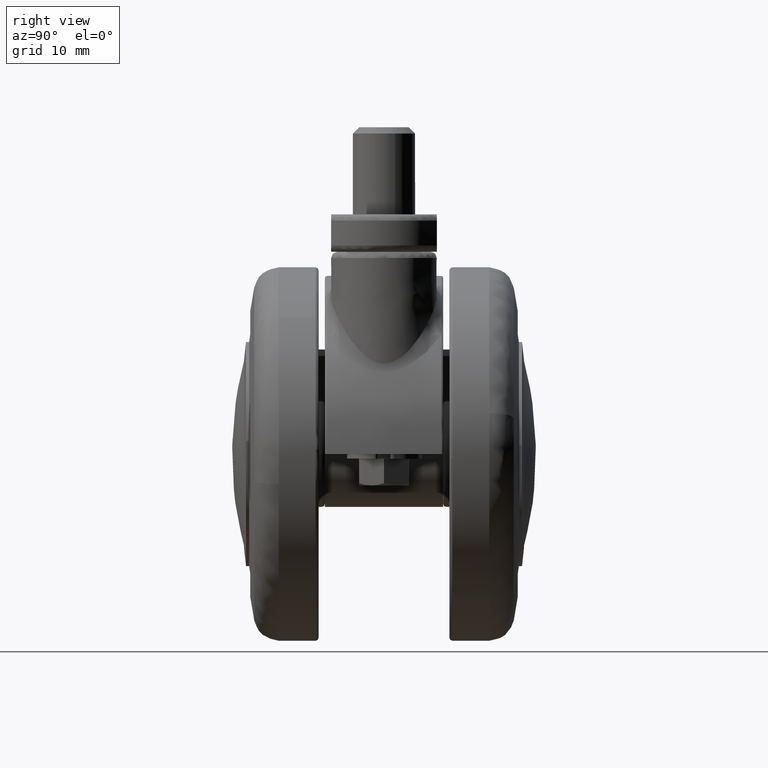
[diagram: clean part render]
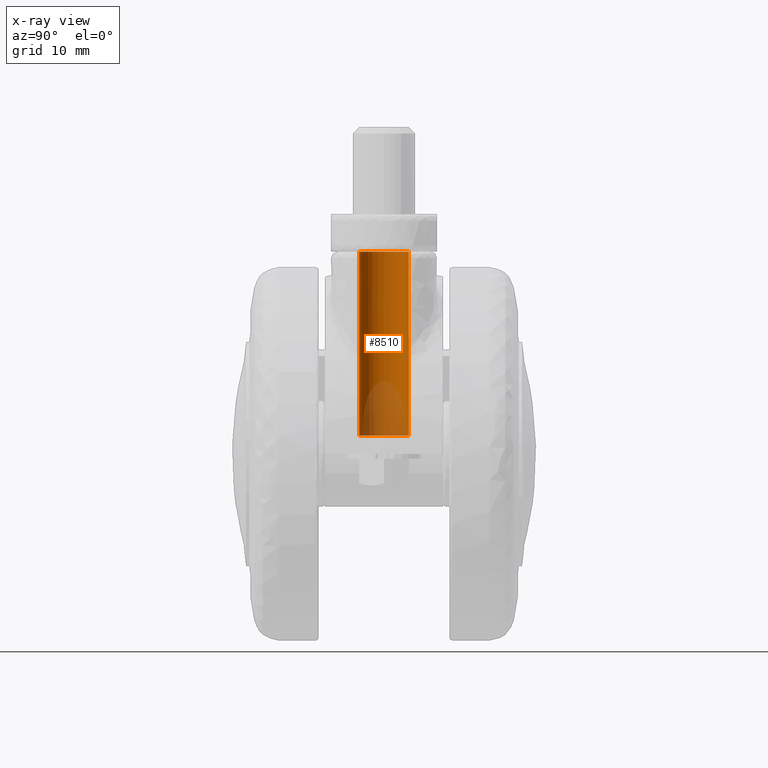
[diagram: x-ray — body ghosted, one internal face saturated and labeled with its STEP entity id]
A machine part, right view, then the same camera in x-ray: the body is ghosted and one INTERNAL B-rep face — a face not visible from any outside direction — is saturated and labeled: STEP entity #8510.
In plain terms, the highlighted face is a freeform B-spline surface patch.
Its self-contained STEP definition (entity closure, byte-faithful):
#8345=CARTESIAN_POINT('',(17.496512008388191,3.969064855293539,32.500000000000000));
#8346=VERTEX_POINT('',#8345);
#8360=CARTESIAN_POINT('',(16.965093857741259,-3.999847692254370,32.500000000000000));
#8361=VERTEX_POINT('',#8360);
#8377=CARTESIAN_POINT('',(16.965093857718490,-3.999847692254171,2.950000000000000));
#8378=VERTEX_POINT('',#8377);
#8379=CARTESIAN_POINT('',(16.965093857741259,-3.999847692254370,32.500000000000000));
#8380=CARTESIAN_POINT('',(16.965093857718490,-3.999847692254171,2.950000000000000));
#8381=QUASI_UNIFORM_CURVE('',1,(#8379,#8380),.UNSPECIFIED.,.F.,.U.);
#8382=EDGE_CURVE('',#8361,#8378,#8381,.T.);
#8401=CARTESIAN_POINT('',(17.496507384745449,3.969065433684801,2.950000000000000));
#8402=VERTEX_POINT('',#8401);
#8416=CARTESIAN_POINT('',(17.496512008388191,3.969064855293539,32.500000000000000));
#8417=CARTESIAN_POINT('',(17.496507384745449,3.969065433684801,2.950000000000000));
#8418=QUASI_UNIFORM_CURVE('',1,(#8416,#8417),.UNSPECIFIED.,.F.,.U.);
#8419=EDGE_CURVE('',#8346,#8402,#8418,.T.);
#8424=CARTESIAN_POINT('',(16.965093858006501,-3.999847692256684,33.238750000000003));
#8425=CARTESIAN_POINT('',(12.965246165749821,-3.964941550263188,33.238750000000003));
#8426=CARTESIAN_POINT('',(13.000152307743321,0.034906141993496,33.238750000000003));
#8427=CARTESIAN_POINT('',(13.035058449736812,4.034753834250179,33.238750000000003));
#8428=CARTESIAN_POINT('',(17.034906141993499,3.999847692256684,33.238750000000003));
#8429=CARTESIAN_POINT('',(17.266600635832695,3.997825725041103,33.238750000000003));
#8430=CARTESIAN_POINT('',(17.496512008319321,3.969064855302155,33.238750000000003));
#8431=CARTESIAN_POINT('',(16.965093858006501,-3.999847692256684,2.192781249999996));
#8432=CARTESIAN_POINT('',(12.965246165749821,-3.964941550263188,2.192781249999997));
#8433=CARTESIAN_POINT('',(13.000152307743321,0.034906141993496,2.192781249999996));
#8434=CARTESIAN_POINT('',(13.035058449736812,4.034753834250179,2.192781249999997));
#8435=CARTESIAN_POINT('',(17.034906141993499,3.999847692256684,2.192781249999996));
#8436=CARTESIAN_POINT('',(17.266600635832695,3.997825725041103,2.192781249999996));
#8437=CARTESIAN_POINT('',(17.496512008319321,3.969064855302155,2.192781249999996));
#8445=(BOUNDED_SURFACE()B_SPLINE_SURFACE(2,1,((#8424,#8431),(#8425,#8432),(#8426,#8433),(#8427,#8434),(#8428,#8435),(#8429,#8436),(#8430,#8437)),.UNSPECIFIED.,.F.,.F.,.U.)B_SPLINE_SURFACE_WITH_KNOTS((3,2,2,3),(2,2),(0.0,6.627416997969518,13.254833995939039,13.785027355776601),(0.0,31.045968750000011),.UNSPECIFIED.)GEOMETRIC_REPRESENTATION_ITEM()RATIONAL_B_SPLINE_SURFACE(((1.0,1.0),(0.707106781186548,0.707106781186548),(1.0,1.0),(0.707106781186548,0.707106781186548),(1.0,1.0),(0.976568542494924,0.976568542494924),(0.956886118190660,0.956886118190660)))REPRESENTATION_ITEM('')SURFACE());
#8446=CARTESIAN_POINT('',(13.0,0.0,32.500000000000000));
#8447=VERTEX_POINT('',#8446);
#8448=CARTESIAN_POINT('',(17.496512008388198,3.969064855293539,32.500000000000000));
#8449=CARTESIAN_POINT('',(17.249219710203661,4.000000000000000,32.500000000000000));
#8450=CARTESIAN_POINT('',(17.0,4.0,32.500000000000000));
#8451=CARTESIAN_POINT('',(13.000000000000004,4.000000000000000,32.500000000000007));
#8452=CARTESIAN_POINT('',(13.0,0.0,32.500000000000000));
#8460=(BOUNDED_CURVE()B_SPLINE_CURVE(2,(#8448,#8449,#8450,#8451,#8452),.UNSPECIFIED.,.F.,.U.)B_SPLINE_CURVE_WITH_KNOTS((3,2,3),(0.228526071023446,0.250000000000000,0.500000000000000),.UNSPECIFIED.)CURVE()GEOMETRIC_REPRESENTATION_ITEM()RATIONAL_B_SPLINE_CURVE((0.954005430263360,0.974841727285942,1.0,0.707106781186548,1.0))REPRESENTATION_ITEM(''));
#8461=EDGE_CURVE('',#8346,#8447,#8460,.T.);
#8462=ORIENTED_EDGE('',*,*,#8461,.F.);
#8463=ORIENTED_EDGE('',*,*,#8419,.T.);
#8464=CARTESIAN_POINT('',(13.0,0.0,2.950000000000000));
#8465=VERTEX_POINT('',#8464);
#8466=CARTESIAN_POINT('',(13.0,0.0,2.950000000000000));
#8467=CARTESIAN_POINT('',(13.000000000000004,4.000000000000000,2.950000000000000));
#8468=CARTESIAN_POINT('',(17.0,4.0,2.950000000000000));
#8469=CARTESIAN_POINT('',(17.249217371285170,4.000000000000000,2.949999999999999));
#8470=CARTESIAN_POINT('',(17.496507384745449,3.969065433684801,2.949999999999999));
#8478=(BOUNDED_CURVE()B_SPLINE_CURVE(2,(#8466,#8467,#8468,#8469,#8470),.UNSPECIFIED.,.F.,.U.)B_SPLINE_CURVE_WITH_KNOTS((3,2,3),(0.0,0.250000000000000,0.271473732514616),.UNSPECIFIED.)CURVE()GEOMETRIC_REPRESENTATION_ITEM()RATIONAL_B_SPLINE_CURVE((1.0,0.707106781186548,1.0,0.974841957455421,0.954005811520390))REPRESENTATION_ITEM(''));
#8479=EDGE_CURVE('',#8465,#8402,#8478,.T.);
#8480=ORIENTED_EDGE('',*,*,#8479,.F.);
#8481=CARTESIAN_POINT('',(16.965093857718482,-3.999847692254171,2.950000000000001));
#8482=CARTESIAN_POINT('',(13.000000000000004,-3.965244841808844,2.950000000000000));
#8483=CARTESIAN_POINT('',(13.0,0.0,2.950000000000000));
#8491=(BOUNDED_CURVE()B_SPLINE_CURVE(2,(#8481,#8482,#8483),.UNSPECIFIED.,.F.,.U.)B_SPLINE_CURVE_WITH_KNOTS((3,3),(0.751539894360354,1.0),.UNSPECIFIED.)CURVE()GEOMETRIC_REPRESENTATION_ITEM()RATIONAL_B_SPLINE_CURVE((0.996414028041700,0.708910879649895,1.0))REPRESENTATION_ITEM(''));
#8492=EDGE_CURVE('',#8378,#8465,#8491,.T.);
#8493=ORIENTED_EDGE('',*,*,#8492,.F.);
#8494=ORIENTED_EDGE('',*,*,#8382,.F.);
#8495=CARTESIAN_POINT('',(13.0,0.0,32.500000000000000));
#8496=CARTESIAN_POINT('',(13.000000000000004,-3.965244841854013,32.500000000000000));
#8497=CARTESIAN_POINT('',(16.965093857741255,-3.999847692254370,32.499999999999993));
#8505=(BOUNDED_CURVE()B_SPLINE_CURVE(2,(#8495,#8496,#8497),.UNSPECIFIED.,.F.,.U.)B_SPLINE_CURVE_WITH_KNOTS((3,3),(0.500000000000000,0.748460105641652),.UNSPECIFIED.)CURVE()GEOMETRIC_REPRESENTATION_ITEM()RATIONAL_B_SPLINE_CURVE((1.0,0.708910879647544,0.996414028046343))REPRESENTATION_ITEM(''));
#8506=EDGE_CURVE('',#8447,#8361,#8505,.T.);
#8507=ORIENTED_EDGE('',*,*,#8506,.F.);
#8508=EDGE_LOOP('',(#8462,#8463,#8480,#8493,#8494,#8507));
#8509=FACE_OUTER_BOUND('',#8508,.T.);
#8510=ADVANCED_FACE('',(#8509),#8445,.T.);